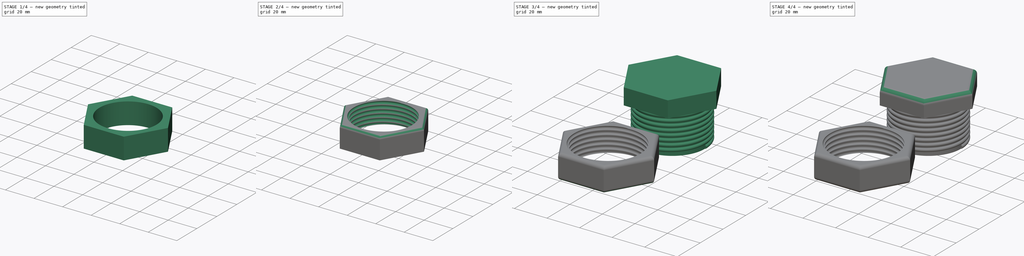
[diagram: build sequence overview — one tinted view per stage of 4, left to right]
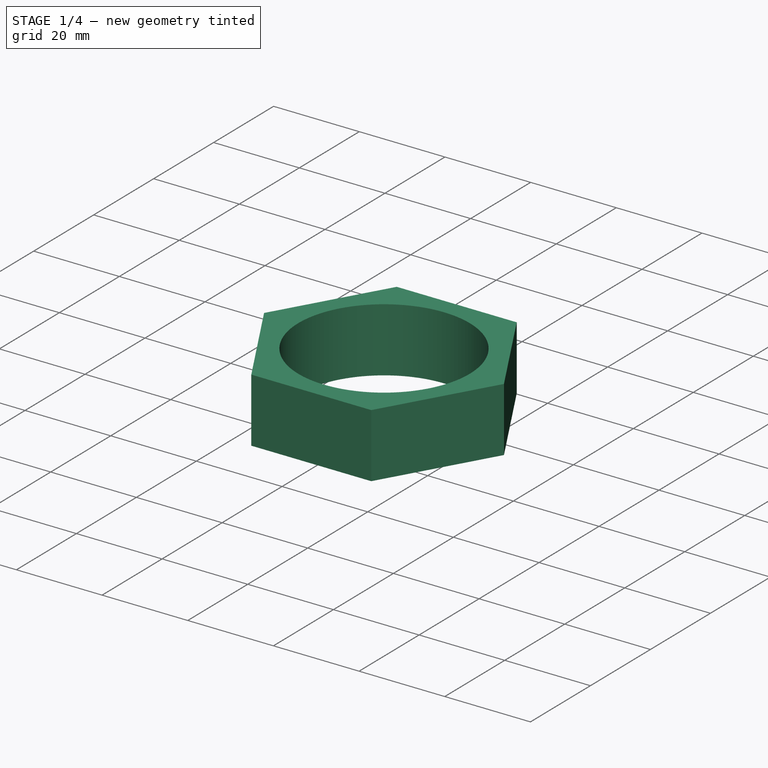
[diagram: stage 1 of 4 — iso view after this stage's code; geometry added in this stage tinted green]
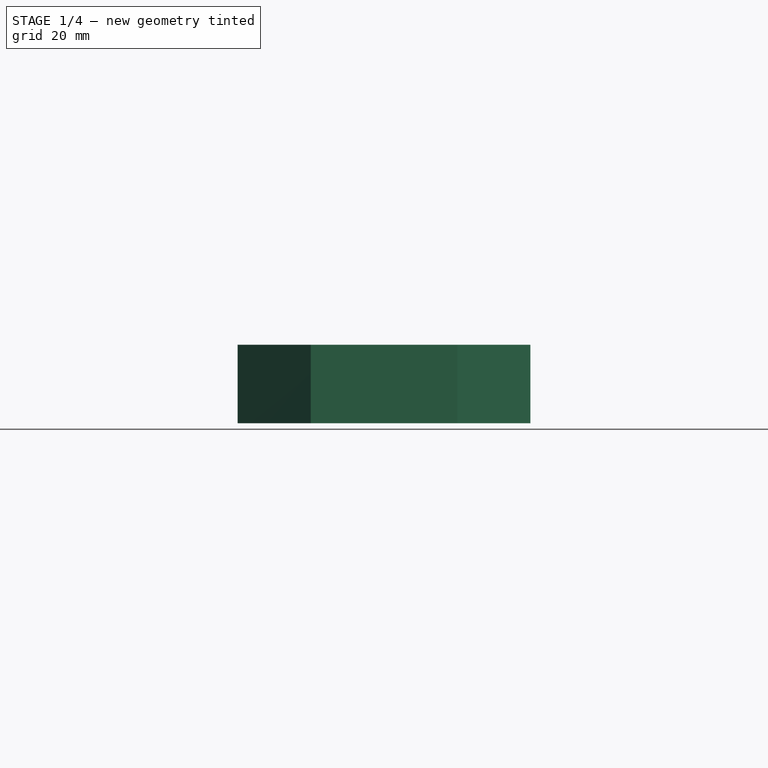
[diagram: stage 1 of 4 — front view after this stage's code; geometry added in this stage tinted green]
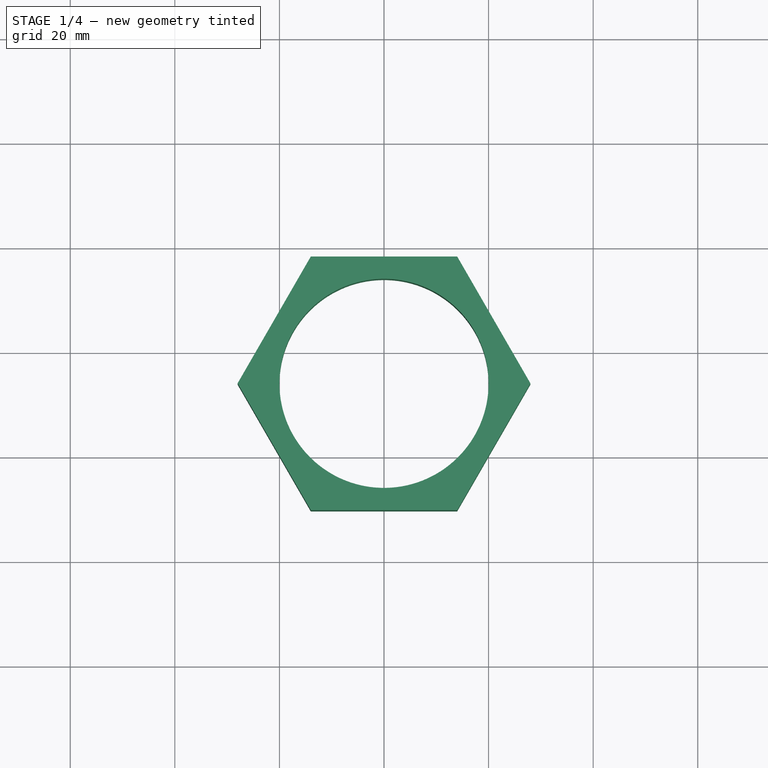
[diagram: stage 1 of 4 — top view after this stage's code; geometry added in this stage tinted green]
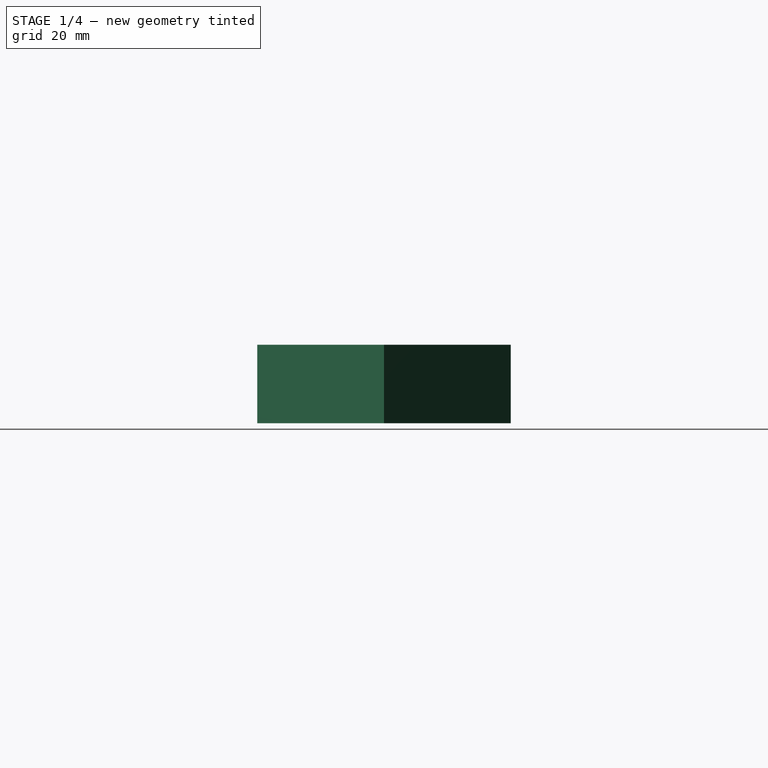
[diagram: stage 1 of 4 — right view after this stage's code; geometry added in this stage tinted green]
FCSTD DOCUMENT  (FreeCAD 0.17R13522 (Git))
Label: tuerca_tornillo
License: CreativeCommons Attribution-ShareAlike
LicenseURL: http://creativecommons.org/licenses/by-sa/4.0/
objects: Part::Fillet×3, Part::Helix×2, Sketcher::SketchObject×2, Part::Sweep×2, Part::Prism×2, Part::Cylinder×2, Part::Cut×2, Part::MultiFuse×2
note: 17 computed .brp shape members not serialized (recipe doc carries the construction recipe); baked Part::Feature solids carry a one-line shape summary decoded from their .brp

FEATURE [Part::Prism] Prism
  AttacherType = Attacher::AttachEngine3D
  Circumradius = 28
  Height = 15
  Placement = pos=(0,-46,3) rot=(0,0,1;0rad)
  Polygon = 6
FEATURE [Part::Cylinder] Cylinder
  Angle = 360
  AttacherType = Attacher::AttachEngine3D
  Height = 40
  Placement = pos=(0,-46,0) rot=(0,0,1;0rad)
  Radius = 20
FEATURE [Part::Cut] Cut
  Base = -> Prism
  Tool = -> Cylinder
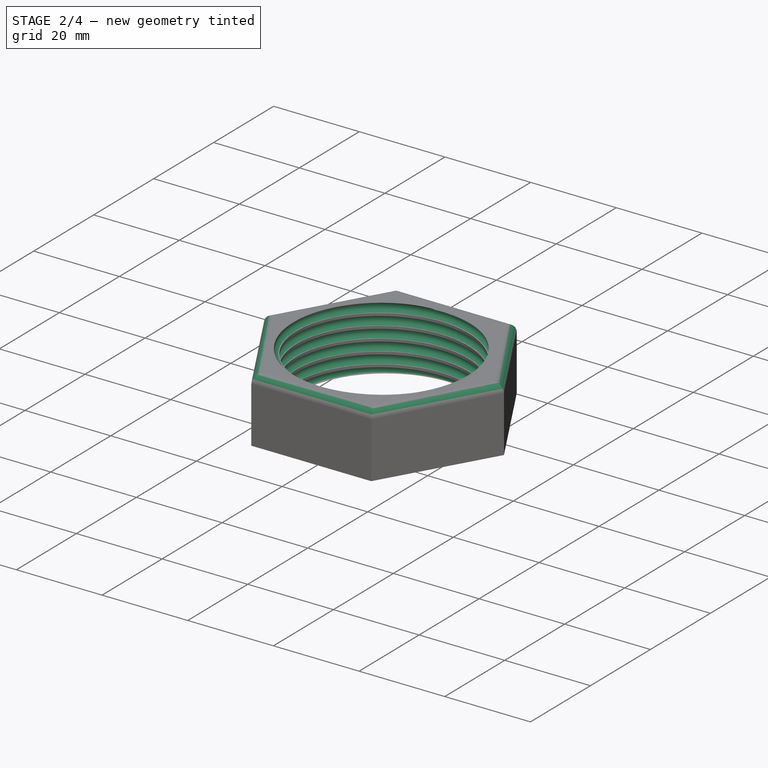
[diagram: stage 2 of 4 — iso view after this stage's code; geometry added in this stage tinted green]
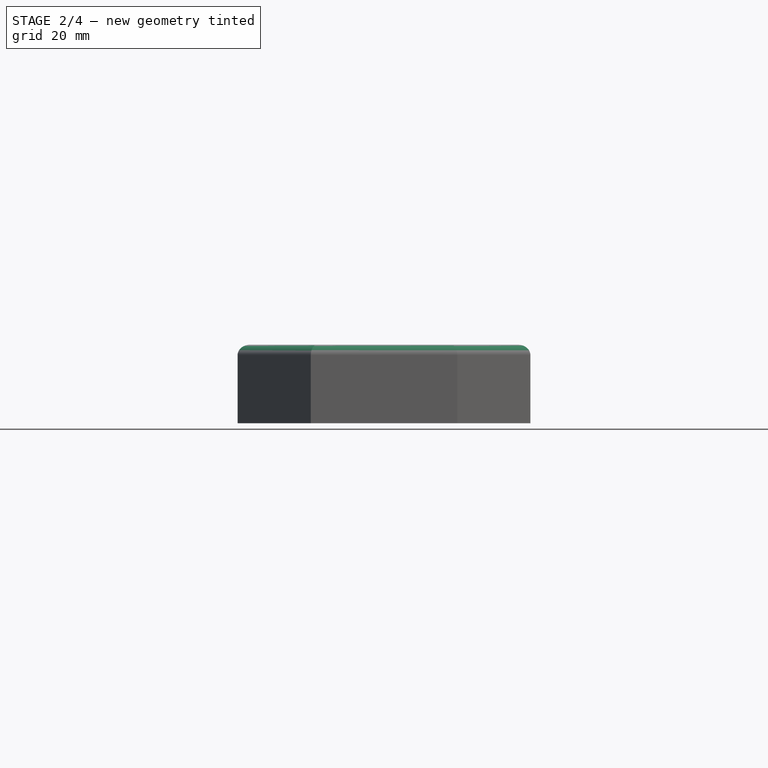
[diagram: stage 2 of 4 — front view after this stage's code; geometry added in this stage tinted green]
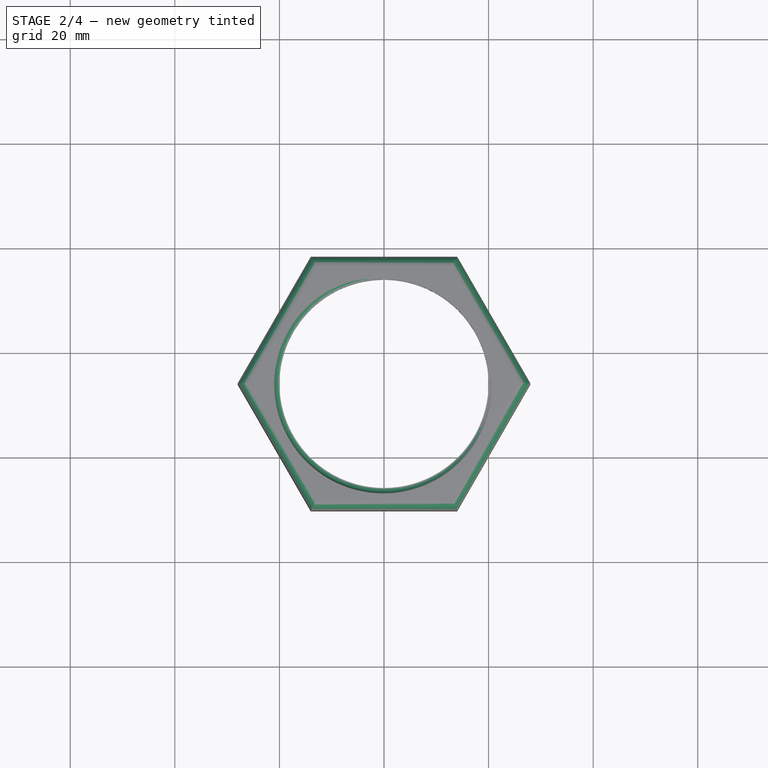
[diagram: stage 2 of 4 — top view after this stage's code; geometry added in this stage tinted green]
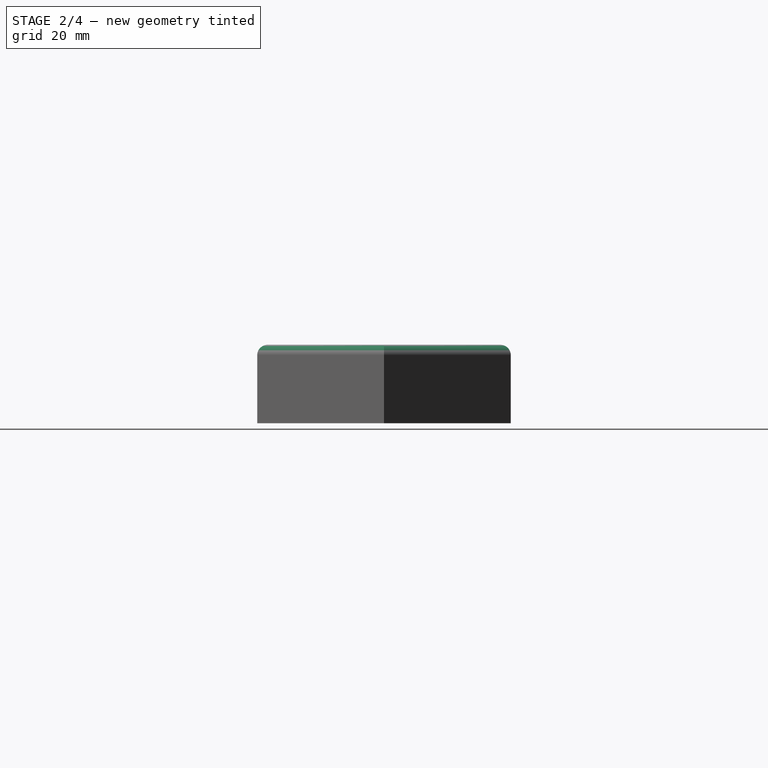
[diagram: stage 2 of 4 — right view after this stage's code; geometry added in this stage tinted green]
FEATURE [Part::Sweep] Sweep001  label="rosca sola tuerca"
  Frenet = false
  Sections = -> [Sketch]
  Solid = true
  Spine = -> Helix
  Transition = 1
FEATURE [Part::Cut] Cut001  label="tuerca"
  Base = -> Cut
  Tool = -> Sweep001
FEATURE [Part::Fillet] Fillet
  Base = -> Cut001
  Edges = 6 edges r=2: [Edge4,Edge7,Edge10,Edge18,Edge19,Edge20]
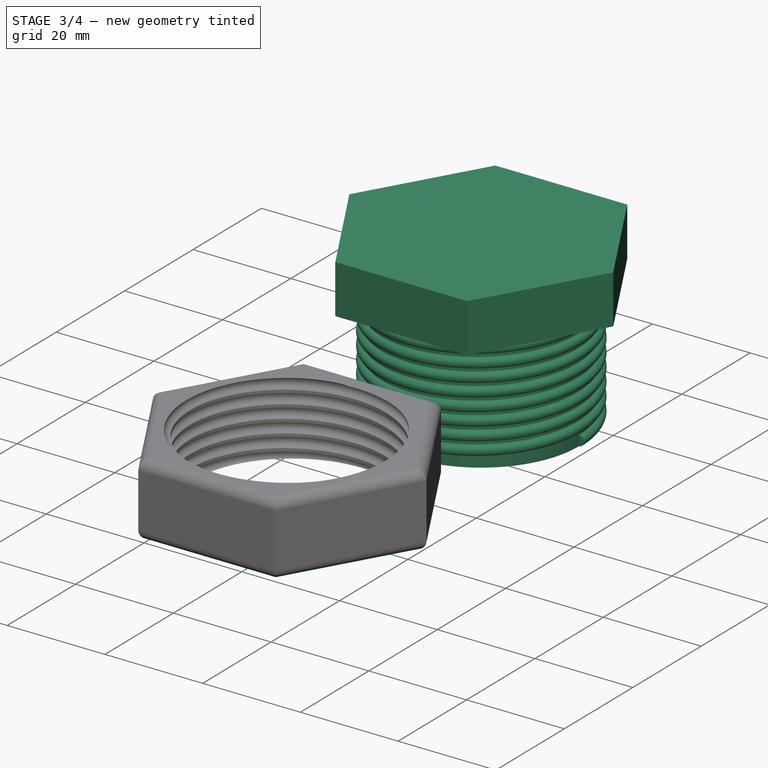
[diagram: stage 3 of 4 — iso view after this stage's code; geometry added in this stage tinted green]
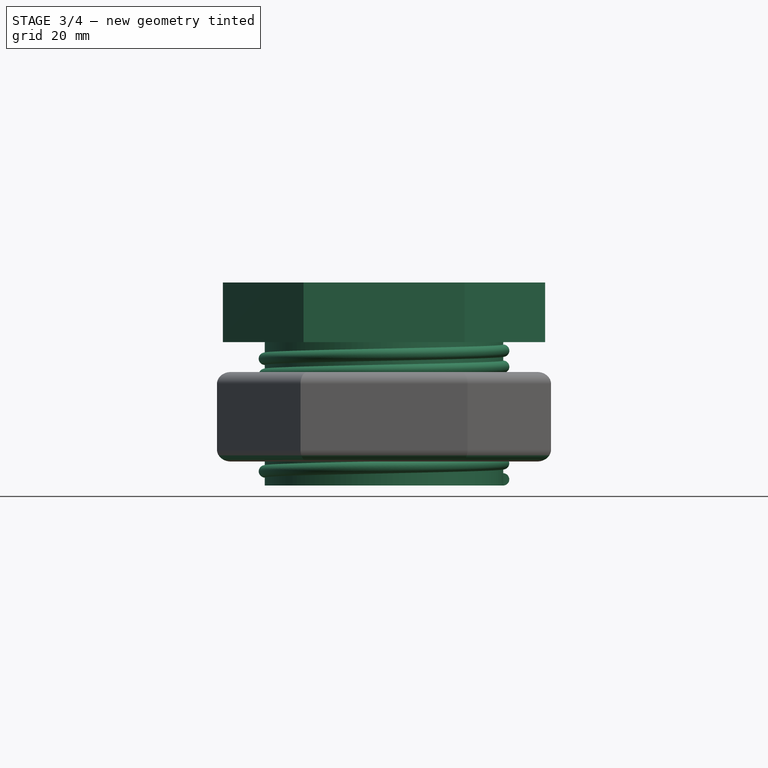
[diagram: stage 3 of 4 — front view after this stage's code; geometry added in this stage tinted green]
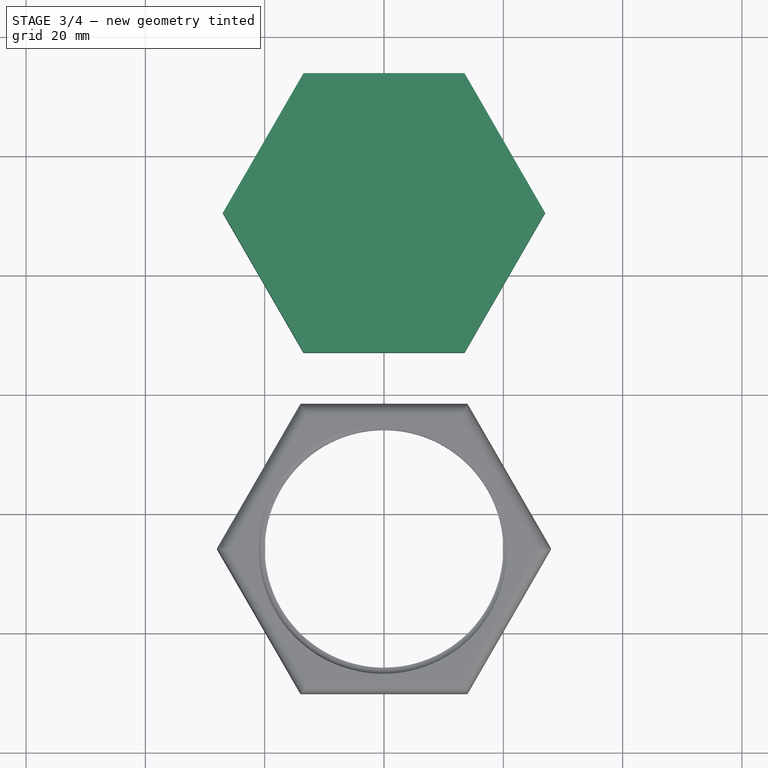
[diagram: stage 3 of 4 — top view after this stage's code; geometry added in this stage tinted green]
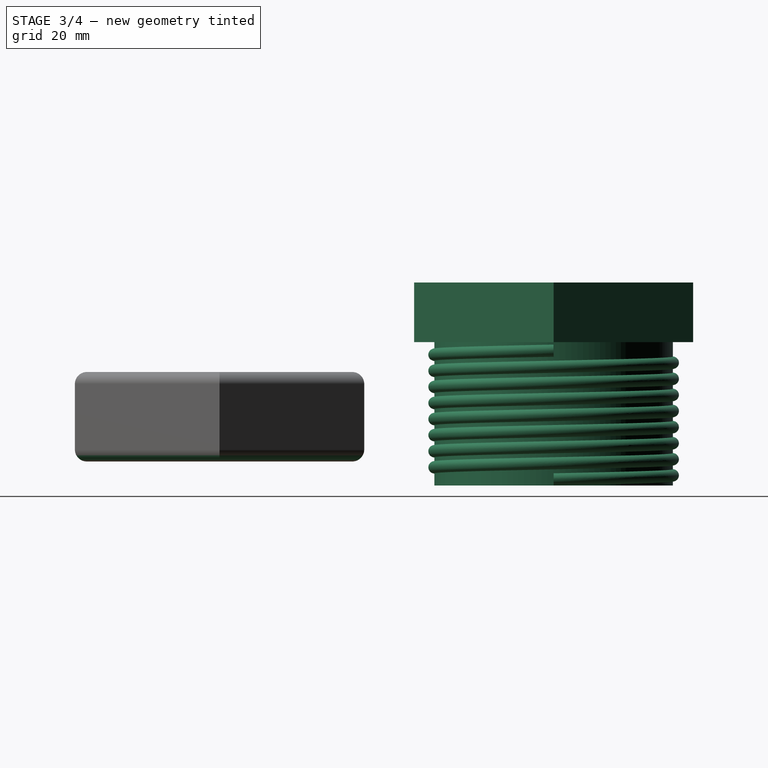
[diagram: stage 3 of 4 — right view after this stage's code; geometry added in this stage tinted green]
FEATURE [Part::Helix] Helix  label="helice para rosca tuerca"
  Angle = 0
  AttacherType = Attacher::AttachEngine3D
  Height = 21.6
  LocalCoord = 0
  Pitch = 2.7
  Placement = pos=(0,-46,0) rot=(0,0,1;0rad)
  Radius = 20
  Style = 1
FEATURE [Part::Helix] Helix001  label="helice para rosca tornillo"
  Angle = 0
  AttacherType = Attacher::AttachEngine3D
  Height = 21.6
  LocalCoord = 0
  Pitch = 2.7
  Radius = 20
  Style = 1
FEATURE [Sketcher::SketchObject] Sketch
  MapMode = 3
  Placement = pos=(0,-46,0) rot=(1,0,0;1.5708rad)
  Support = -> [Helix]
  sketch-geometry (1):
    g0: Circle CenterX=20.0374 CenterY=0 CenterZ=0 NormalX=0 NormalY=0 NormalZ=1 AngleXU=0 Radius=1.05
  constraints (2):
    c: PointOnObject(g0,g-1)
    c: Radius(g0) = 1.05
FEATURE [Sketcher::SketchObject] Sketch001
  MapMode = 3
  Placement = pos=(0,0,0) rot=(1,0,0;1.5708rad)
  Support = -> [Helix001]
  sketch-geometry (1):
    g0: Circle CenterX=19.9785 CenterY=0 CenterZ=0 NormalX=0 NormalY=0 NormalZ=1 AngleXU=0 Radius=1.02
  constraints (2):
    c: PointOnObject(g0,g-1)
    c: Radius(g0) = 1.02
FEATURE [Part::Sweep] Sweep  label="rosca sola tornillo"
  Frenet = false
  Placement = pos=(0,10,0) rot=(0,0,1;0rad)
  Sections = -> [Sketch001]
  Solid = true
  Spine = -> Helix001
  Transition = 1
FEATURE [Part::Cylinder] Cylinder001
  Angle = 360
  AttacherType = Attacher::AttachEngine3D
  Height = 34
  Placement = pos=(0,10,-1.02) rot=(0,0,1;0rad)
  Radius = 20
FEATURE [Part::Prism] Prism001
  AttacherType = Attacher::AttachEngine3D
  Circumradius = 27
  Height = 10
  Placement = pos=(0,10,23) rot=(0,0,1;0rad)
  Polygon = 6
FEATURE [Part::Fillet] Fillet002  label="tuerca001"
  Base = -> Fillet
  Edges = 6 edges r=2: [Edge3,Edge7,Edge11,Edge12,Edge13,Edge14]
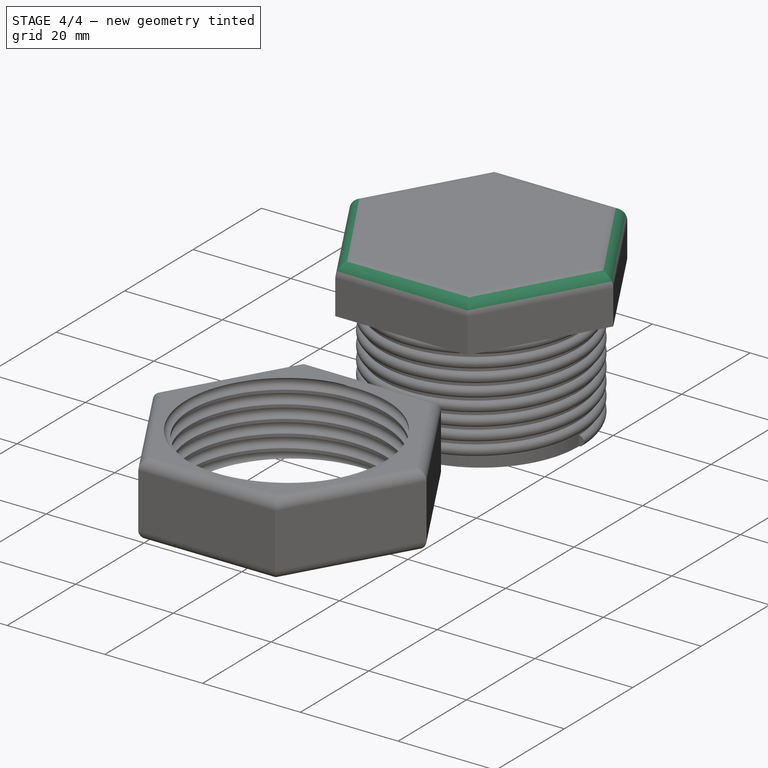
[diagram: stage 4 of 4 — iso view after this stage's code; geometry added in this stage tinted green]
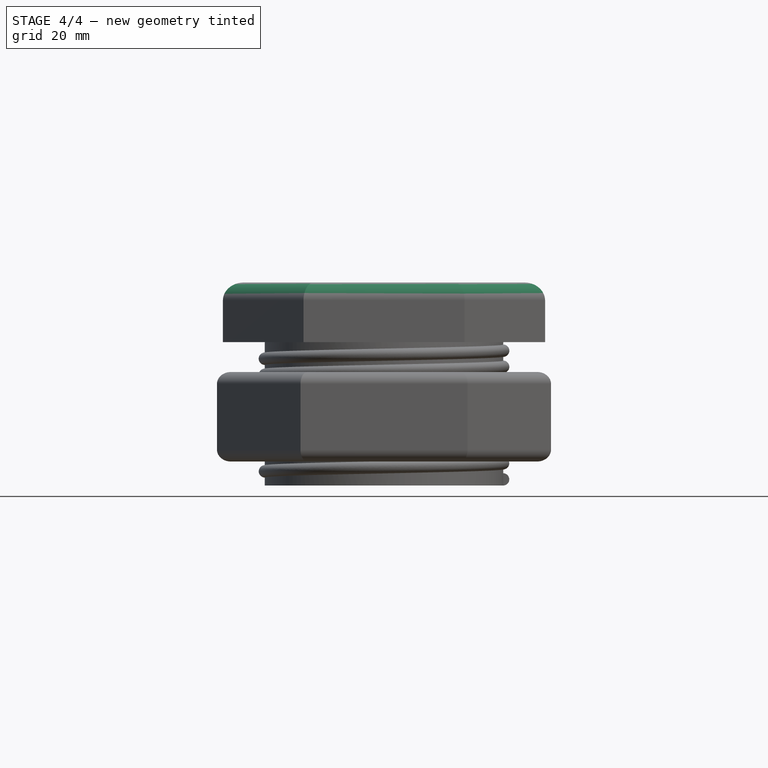
[diagram: stage 4 of 4 — front view after this stage's code; geometry added in this stage tinted green]
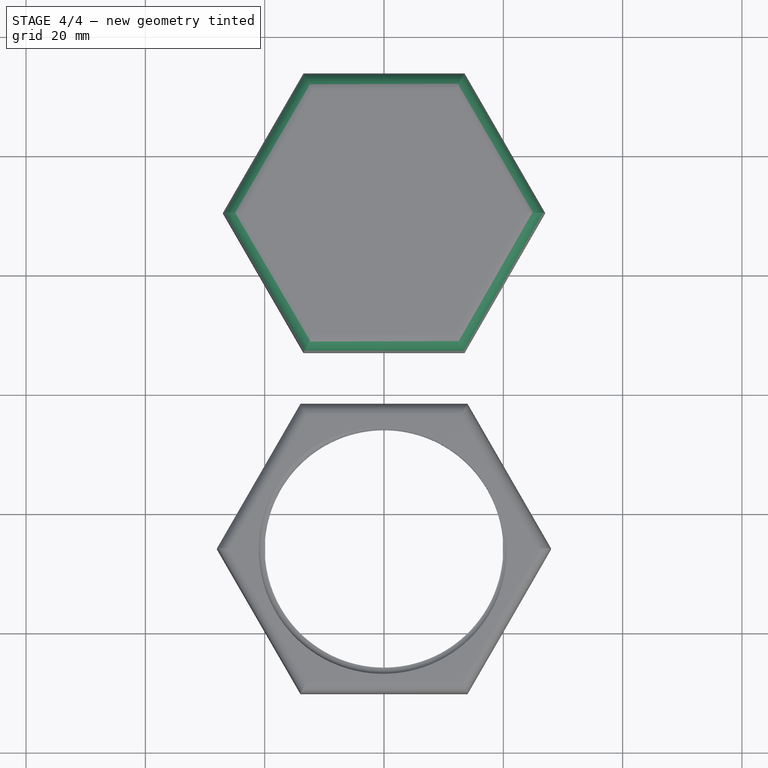
[diagram: stage 4 of 4 — top view after this stage's code; geometry added in this stage tinted green]
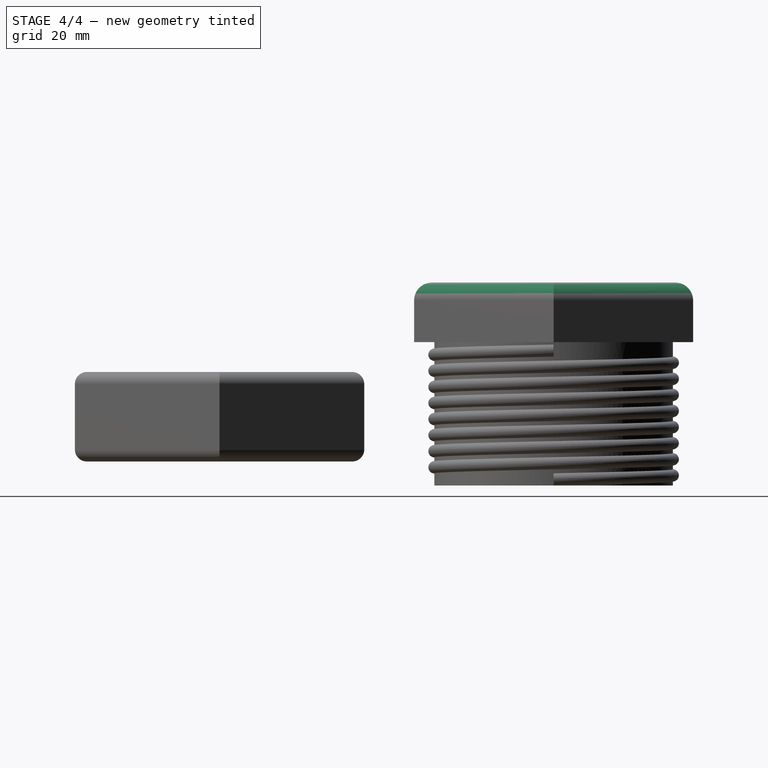
[diagram: stage 4 of 4 — right view after this stage's code; geometry added in this stage tinted green]
FEATURE [Part::MultiFuse] Fusion
  Shapes = -> [Cylinder001,Sweep]
FEATURE [Part::MultiFuse] Fusion001  label="tornillo"
  Shapes = -> [Prism001,Fusion]
FEATURE [Part::Fillet] Fillet001  label="tornillo001"
  Base = -> Fusion001
  Edges = 6 edges r=3: [Edge4,Edge7,Edge10,Edge15,Edge16,Edge17]
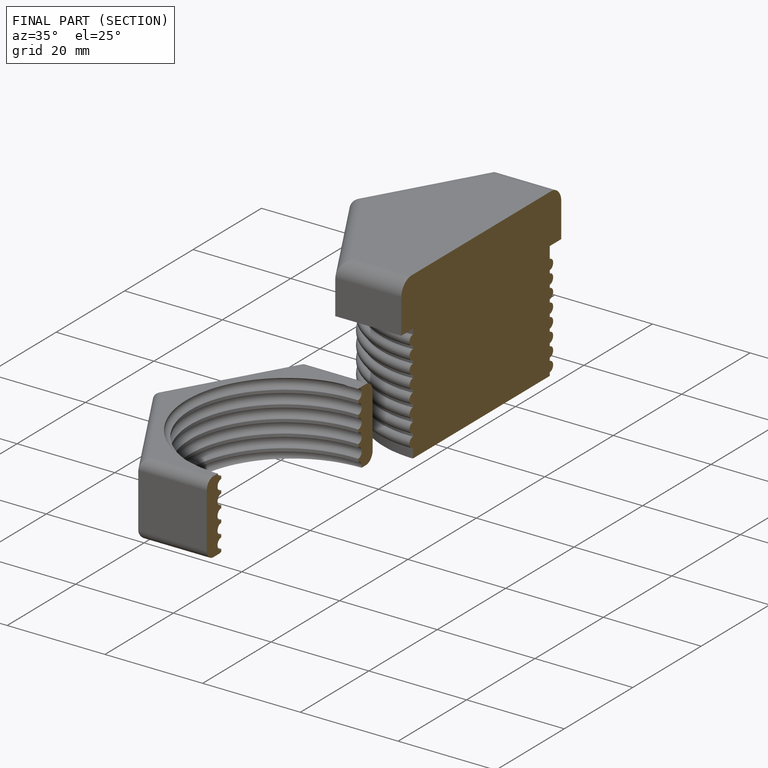
[diagram: finished part — half-section view (interior)]
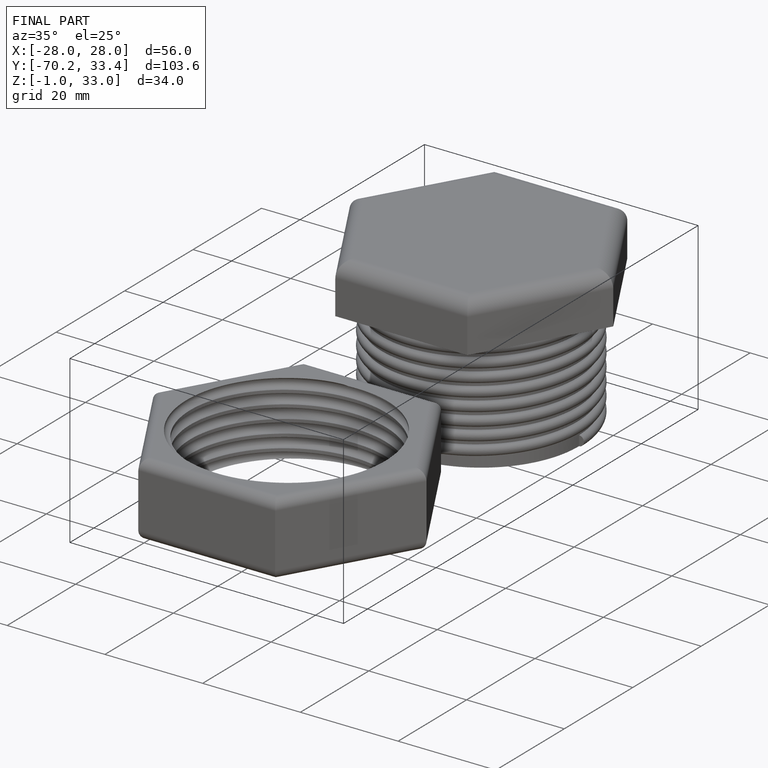
[diagram: finished part — iso view with bounding-box wireframe]
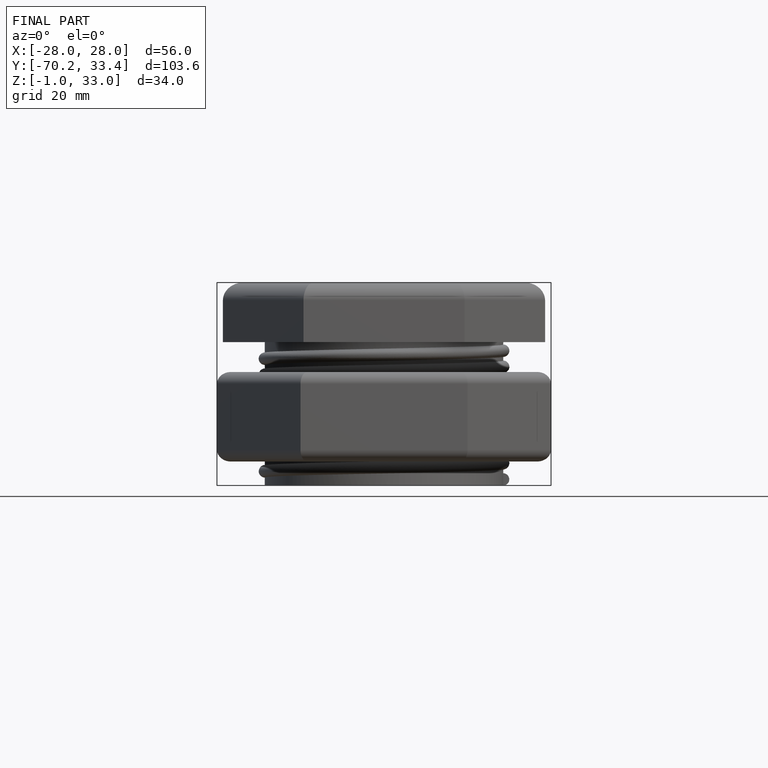
[diagram: finished part — front view with bounding-box wireframe]
